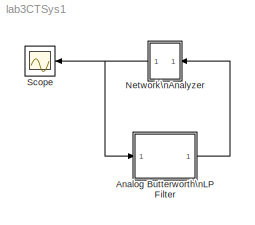
MODEL lab3CTSys1
KIND model
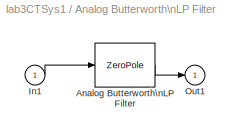
BLOCK [SubSystem] Analog Butterworth\nLP Filter
  Ports = [1, 1]
  RequestExecContextInheritance = off
  SID = 1
  Variant = off
BLOCK [ZeroPole] Analog Butterworth\nLP Filter/Analog Butterworth\nLP Filter
  Gain = k
  Poles = p
  SID = 3
  Zeros = z
BLOCK [Inport] Analog Butterworth\nLP Filter/In1
  IconDisplay = Port number
  SID = 2
BLOCK [Outport] Analog Butterworth\nLP Filter/Out1
  IconDisplay = Port number
  SID = 4
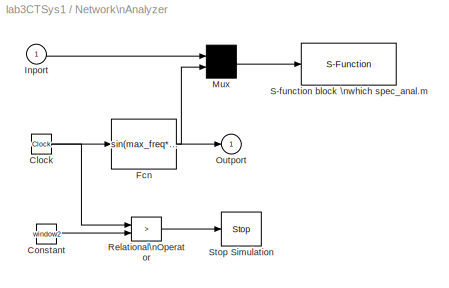
BLOCK [SubSystem] Network\nAnalyzer
  Ports = [1, 1]
  RequestExecContextInheritance = off
  SID = 5
  ShowPortLabels = none
  Variant = off
BLOCK [Clock] Network\nAnalyzer/Clock
  SID = 7
BLOCK [Constant] Network\nAnalyzer/Constant
  SID = 8
  Value = window2
BLOCK [Fcn] Network\nAnalyzer/Fcn
  Expr = sin(max_freq*u*u/(2*window1))*(0.54+0.46*cos(pi*u/window1))*(u<window1)
  SID = 9
BLOCK [Inport] Network\nAnalyzer/Inport
  IconDisplay = Port number
  SID = 6
BLOCK [Mux] Network\nAnalyzer/Mux
  Inputs = 2
  Ports = [2, 1]
  SID = 10
BLOCK [Outport] Network\nAnalyzer/Outport
  IconDisplay = Port number
  InitialOutput = 0
  SID = 14
BLOCK [RelationalOperator] Network\nAnalyzer/Relational\nOperator
  Operator = >
  Ports = [2, 1]
  SID = 11
BLOCK [S-Function] Network\nAnalyzer/S-function block \nwhich spec_anal.m
  EnableBusSupport = off
  FunctionName = NetAnal
  Parameters = N,T_s
  Ports = [1]
  SFcnIsStateOwnerBlock = off
  SFunctionDeploymentMode = off
  SID = 12
BLOCK [Stop] Network\nAnalyzer/Stop Simulation
  SID = 13
BLOCK [Scope] Scope
  NumInputPorts = 1
  Ports = [1]
  SID = 15
  ScopeSpecificationString = Simulink.scopes.TimeScopeBlockCfg('CurrentConfiguration', extmgr.ConfigurationSet(extmgr.Configuration('Core','General UI',true),extmgr.Configuration('Core','Source UI',true),extmgr.Configuration('Sources','WiredSimulink',true,'DataLoggingSaveFormat','Array','DataLoggingLimitDataPoints',true,'DataLoggingDecimation','1','DataLoggingDecimateData',true),extmgr.Configuration('Visuals','Time Domain',tr...<+1665ch>
LINE Analog Butterworth\nLP Filter/Analog Butterworth\nLP Filter:1 -> Analog Butterworth\nLP Filter/Out1:1
LINE Analog Butterworth\nLP Filter/In1:1 -> Analog Butterworth\nLP Filter/Analog Butterworth\nLP Filter:1
LINE Analog Butterworth\nLP Filter:1 -> Network\nAnalyzer:1
NET Network\nAnalyzer/Clock:1 -> Network\nAnalyzer/Fcn:1, Network\nAnalyzer/Relational\nOperator:1
LINE Network\nAnalyzer/Constant:1 -> Network\nAnalyzer/Relational\nOperator:2
NET Network\nAnalyzer/Fcn:1 -> Network\nAnalyzer/Mux:2, Network\nAnalyzer/Outport:1
LINE Network\nAnalyzer/Inport:1 -> Network\nAnalyzer/Mux:1
LINE Network\nAnalyzer/Mux:1 -> Network\nAnalyzer/S-function block \nwhich spec_anal.m:1
LINE Network\nAnalyzer/Relational\nOperator:1 -> Network\nAnalyzer/Stop Simulation:1
NET Network\nAnalyzer:1 -> Analog Butterworth\nLP Filter:1, Scope:1
note: NET lines group one-source signal fan-out (src -> all destinations, sorted); 1:1 wires keep LINE
